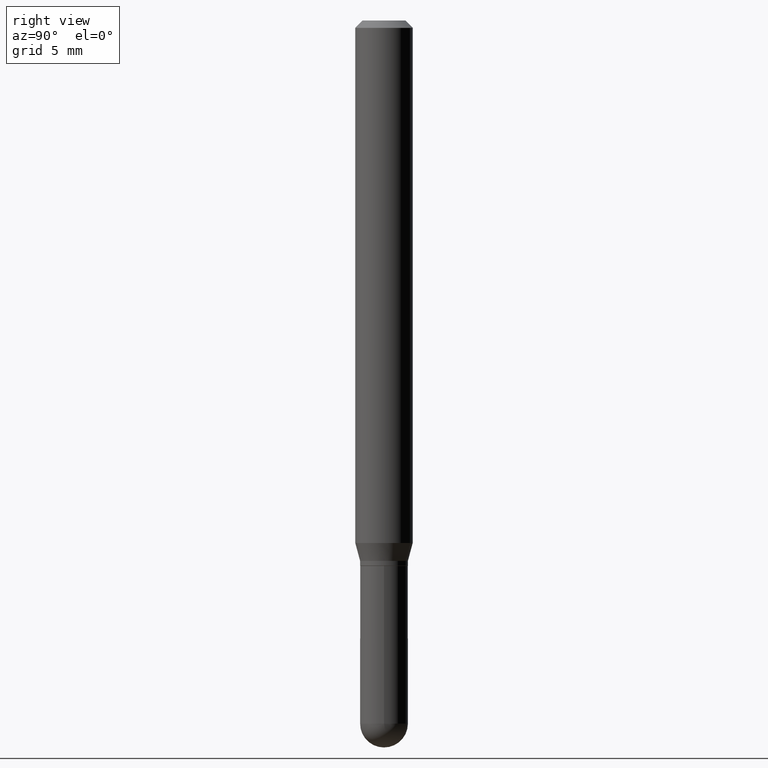
[diagram: clean part render]
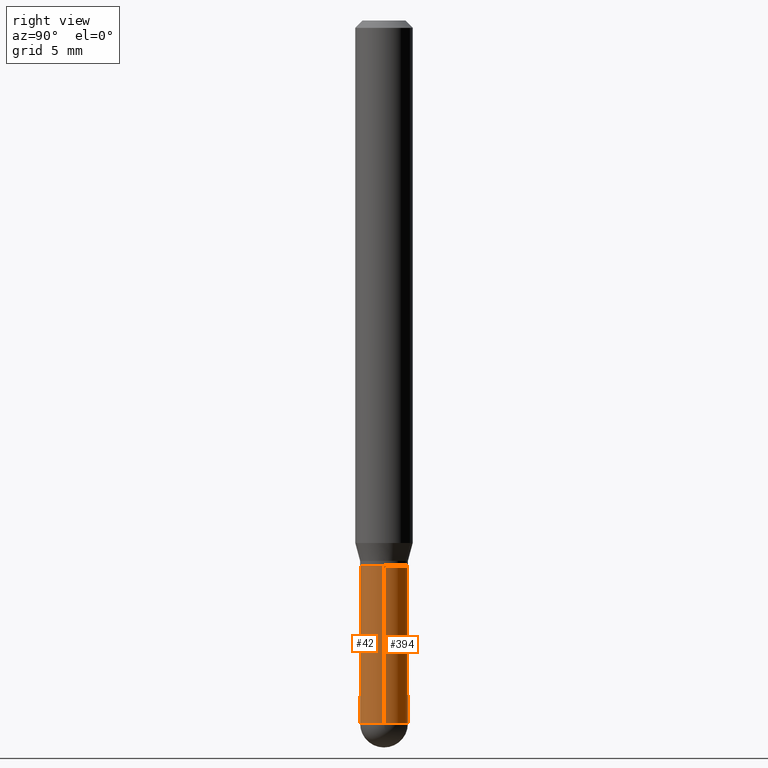
[diagram: same view with one multi-face feature highlighted, each face labeled with its STEP entity id]
A machine part, right view. The highlighted faces form ONE feature: a constant-radius fillet chain: 2 tangent blend faces with common blend radius 1.2497 mm. The faces share edges in the B-rep.
Their STEP definitions:
[1] entity #42 (Cylinder):
#9 = EDGE_CURVE ( 'NONE', #389, #465, #79, .T. ) ;
#17 = CIRCLE ( 'NONE', #277, 0.04920000000000000068 ) ;
#37 = DIRECTION ( 'NONE',  ( -2.445468806185136877E-29, 3.491481338843145188E-15, 1.000000000000000000 ) ) ;
#42 = ADVANCED_FACE ( 'NONE', ( #150 ), #275, .T. ) ;
#78 = VERTEX_POINT ( 'NONE', #135 ) ;
#79 = LINE ( 'NONE', #113, #99 ) ;
#80 = EDGE_CURVE ( 'NONE', #333, #465, #17, .T. ) ;
#99 = VECTOR ( 'NONE', #426, 39.37007874015748143 ) ;
#113 = CARTESIAN_POINT ( 'NONE',  ( 0.04920000000000000068, -3.435617637421643269E-16, 2.399078973691600472E-30 ) ) ;
#125 = AXIS2_PLACEMENT_3D ( 'NONE', #266, #491, #447 ) ;
#126 = DIRECTION ( 'NONE',  ( -2.445468806185136597E-29, 3.491481338843145583E-15, 1.000000000000000000 ) ) ;
#135 = CARTESIAN_POINT ( 'NONE',  ( -3.435617637421291240E-16, -0.04920000000000508689, -1.446899999999999631 ) ) ;
#143 = EDGE_LOOP ( 'NONE', ( #457, #227, #429, #385, #448 ) ) ;
#150 = FACE_OUTER_BOUND ( 'NONE', #143, .T. ) ;
#153 = CARTESIAN_POINT ( 'NONE',  ( 0.000000000000000000, 0.000000000000000000, 0.000000000000000000 ) ) ;
#164 = CARTESIAN_POINT ( 'NONE',  ( 2.744060547420341208E-29, -3.917791210315892926E-15, -1.122099999999999875 ) ) ;
#170 = CIRCLE ( 'NONE', #125, 0.04920000000000000068 ) ;
#184 = VERTEX_POINT ( 'NONE', #235 ) ;
#208 = DIRECTION ( 'NONE',  ( 1.000000000000000000, -6.982962677686266711E-15, 4.876176775795935793E-29 ) ) ;
#217 = CARTESIAN_POINT ( 'NONE',  ( -0.04920000000000000068, 3.495870259939692963E-16, -2.420116064405413767E-30 ) ) ;
#227 = ORIENTED_EDGE ( 'NONE', *, *, #331, .T. ) ;
#235 = CARTESIAN_POINT ( 'NONE',  ( -0.04920000000000000068, -4.135220753750050718E-15, -1.446899999999999853 ) ) ;
#250 = LINE ( 'NONE', #217, #506 ) ;
#262 = CARTESIAN_POINT ( 'NONE',  ( 3.538348815669273817E-29, -5.051824349172146609E-15, -1.446899999999999853 ) ) ;
#266 = CARTESIAN_POINT ( 'NONE',  ( 3.538348815669273817E-29, -5.051824349172146609E-15, -1.446899999999999853 ) ) ;
#275 = CYLINDRICAL_SURFACE ( 'NONE', #392, 0.04920000000000000068 ) ;
#277 = AXIS2_PLACEMENT_3D ( 'NONE', #164, #402, #406 ) ;
#292 = CARTESIAN_POINT ( 'NONE',  ( -0.04920000000000000068, -4.135220753750050718E-15, -1.122099999999999875 ) ) ;
#331 = EDGE_CURVE ( 'NONE', #184, #78, #170, .T. ) ;
#333 = VERTEX_POINT ( 'NONE', #292 ) ;
#352 = EDGE_CURVE ( 'NONE', #184, #333, #250, .T. ) ;
#376 = DIRECTION ( 'NONE',  ( 1.000000000000000000, -6.982962677686261977E-15, 0.000000000000000000 ) ) ;
#385 = ORIENTED_EDGE ( 'NONE', *, *, #9, .T. ) ;
#389 = VERTEX_POINT ( 'NONE', #444 ) ;
#392 = AXIS2_PLACEMENT_3D ( 'NONE', #153, #126, #208 ) ;
#402 = DIRECTION ( 'NONE',  ( -2.445468806185136597E-29, 3.491481338843145583E-15, 1.000000000000000000 ) ) ;
#406 = DIRECTION ( 'NONE',  ( 1.000000000000000000, -6.982962677686261977E-15, 0.000000000000000000 ) ) ;
#411 = CIRCLE ( 'NONE', #441, 0.04920000000000000068 ) ;
#422 = CARTESIAN_POINT ( 'NONE',  ( 0.04920000000000000068, -4.261352974058057450E-15, -1.122099999999999875 ) ) ;
#426 = DIRECTION ( 'NONE',  ( -2.445468806185136877E-29, 3.491481338843145188E-15, 1.000000000000000000 ) ) ;
#429 = ORIENTED_EDGE ( 'NONE', *, *, #510, .T. ) ;
#441 = AXIS2_PLACEMENT_3D ( 'NONE', #262, #442, #376 ) ;
#442 = DIRECTION ( 'NONE',  ( -2.445468806185136597E-29, 3.491481338843145583E-15, 1.000000000000000000 ) ) ;
#444 = CARTESIAN_POINT ( 'NONE',  ( 0.04920000000000000068, -4.828369543486183897E-15, -1.446899999999999853 ) ) ;
#447 = DIRECTION ( 'NONE',  ( 1.000000000000000000, -6.982962677686261977E-15, 0.000000000000000000 ) ) ;
#448 = ORIENTED_EDGE ( 'NONE', *, *, #80, .F. ) ;
#457 = ORIENTED_EDGE ( 'NONE', *, *, #352, .F. ) ;
#465 = VERTEX_POINT ( 'NONE', #422 ) ;
#491 = DIRECTION ( 'NONE',  ( -2.445468806185136597E-29, 3.491481338843145583E-15, 1.000000000000000000 ) ) ;
#506 = VECTOR ( 'NONE', #37, 39.37007874015748143 ) ;
#510 = EDGE_CURVE ( 'NONE', #78, #389, #411, .T. ) ;
[2] entity #394 (Cylinder):
#1 = ORIENTED_EDGE ( 'NONE', *, *, #187, .F. ) ;
#9 = EDGE_CURVE ( 'NONE', #389, #465, #79, .T. ) ;
#13 = CARTESIAN_POINT ( 'NONE',  ( 3.495870259940048443E-16, 0.04919999999999498386, -1.446900000000000075 ) ) ;
#19 = DIRECTION ( 'NONE',  ( -2.445468806185136597E-29, 3.491481338843145583E-15, 1.000000000000000000 ) ) ;
#32 = CYLINDRICAL_SURFACE ( 'NONE', #439, 0.04920000000000000068 ) ;
#37 = DIRECTION ( 'NONE',  ( -2.445468806185136877E-29, 3.491481338843145188E-15, 1.000000000000000000 ) ) ;
#79 = LINE ( 'NONE', #113, #99 ) ;
#97 = DIRECTION ( 'NONE',  ( -2.445468806185136597E-29, 3.491481338843145583E-15, 1.000000000000000000 ) ) ;
#99 = VECTOR ( 'NONE', #426, 39.37007874015748143 ) ;
#113 = CARTESIAN_POINT ( 'NONE',  ( 0.04920000000000000068, -3.435617637421643269E-16, 2.399078973691600472E-30 ) ) ;
#130 = DIRECTION ( 'NONE',  ( -2.445468806185136597E-29, 3.491481338843145583E-15, 1.000000000000000000 ) ) ;
#139 = ORIENTED_EDGE ( 'NONE', *, *, #9, .F. ) ;
#157 = CIRCLE ( 'NONE', #200, 0.04920000000000000068 ) ;
#176 = CARTESIAN_POINT ( 'NONE',  ( 0.000000000000000000, 0.000000000000000000, 0.000000000000000000 ) ) ;
#184 = VERTEX_POINT ( 'NONE', #235 ) ;
#187 = EDGE_CURVE ( 'NONE', #465, #333, #238, .T. ) ;
#200 = AXIS2_PLACEMENT_3D ( 'NONE', #386, #245, #398 ) ;
#217 = CARTESIAN_POINT ( 'NONE',  ( -0.04920000000000000068, 3.495870259939692963E-16, -2.420116064405413767E-30 ) ) ;
#223 = VERTEX_POINT ( 'NONE', #13 ) ;
#224 = DIRECTION ( 'NONE',  ( 1.000000000000000000, -6.982962677686266711E-15, 4.876176775795935793E-29 ) ) ;
#235 = CARTESIAN_POINT ( 'NONE',  ( -0.04920000000000000068, -4.135220753750050718E-15, -1.446899999999999853 ) ) ;
#238 = CIRCLE ( 'NONE', #279, 0.04920000000000000068 ) ;
#245 = DIRECTION ( 'NONE',  ( -2.445468806185136597E-29, 3.491481338843145583E-15, 1.000000000000000000 ) ) ;
#250 = LINE ( 'NONE', #217, #506 ) ;
#254 = ORIENTED_EDGE ( 'NONE', *, *, #352, .T. ) ;
#255 = AXIS2_PLACEMENT_3D ( 'NONE', #340, #130, #302 ) ;
#279 = AXIS2_PLACEMENT_3D ( 'NONE', #363, #19, #283 ) ;
#283 = DIRECTION ( 'NONE',  ( 1.000000000000000000, -6.982962677686261977E-15, 0.000000000000000000 ) ) ;
#292 = CARTESIAN_POINT ( 'NONE',  ( -0.04920000000000000068, -4.135220753750050718E-15, -1.122099999999999875 ) ) ;
#302 = DIRECTION ( 'NONE',  ( 1.000000000000000000, -6.982962677686261977E-15, 0.000000000000000000 ) ) ;
#309 = EDGE_LOOP ( 'NONE', ( #341, #254, #1, #139, #512 ) ) ;
#313 = CIRCLE ( 'NONE', #255, 0.04920000000000000068 ) ;
#333 = VERTEX_POINT ( 'NONE', #292 ) ;
#340 = CARTESIAN_POINT ( 'NONE',  ( 3.538348815669273817E-29, -5.051824349172146609E-15, -1.446899999999999853 ) ) ;
#341 = ORIENTED_EDGE ( 'NONE', *, *, #401, .T. ) ;
#352 = EDGE_CURVE ( 'NONE', #184, #333, #250, .T. ) ;
#363 = CARTESIAN_POINT ( 'NONE',  ( 2.744060547420341208E-29, -3.917791210315892926E-15, -1.122099999999999875 ) ) ;
#375 = FACE_OUTER_BOUND ( 'NONE', #309, .T. ) ;
#386 = CARTESIAN_POINT ( 'NONE',  ( 3.538348815669273817E-29, -5.051824349172146609E-15, -1.446899999999999853 ) ) ;
#389 = VERTEX_POINT ( 'NONE', #444 ) ;
#394 = ADVANCED_FACE ( 'NONE', ( #375 ), #32, .T. ) ;
#398 = DIRECTION ( 'NONE',  ( 1.000000000000000000, -6.982962677686261977E-15, 0.000000000000000000 ) ) ;
#401 = EDGE_CURVE ( 'NONE', #223, #184, #157, .T. ) ;
#422 = CARTESIAN_POINT ( 'NONE',  ( 0.04920000000000000068, -4.261352974058057450E-15, -1.122099999999999875 ) ) ;
#426 = DIRECTION ( 'NONE',  ( -2.445468806185136877E-29, 3.491481338843145188E-15, 1.000000000000000000 ) ) ;
#439 = AXIS2_PLACEMENT_3D ( 'NONE', #176, #97, #224 ) ;
#444 = CARTESIAN_POINT ( 'NONE',  ( 0.04920000000000000068, -4.828369543486183897E-15, -1.446899999999999853 ) ) ;
#465 = VERTEX_POINT ( 'NONE', #422 ) ;
#484 = EDGE_CURVE ( 'NONE', #389, #223, #313, .T. ) ;
#506 = VECTOR ( 'NONE', #37, 39.37007874015748143 ) ;
#512 = ORIENTED_EDGE ( 'NONE', *, *, #484, .T. ) ;